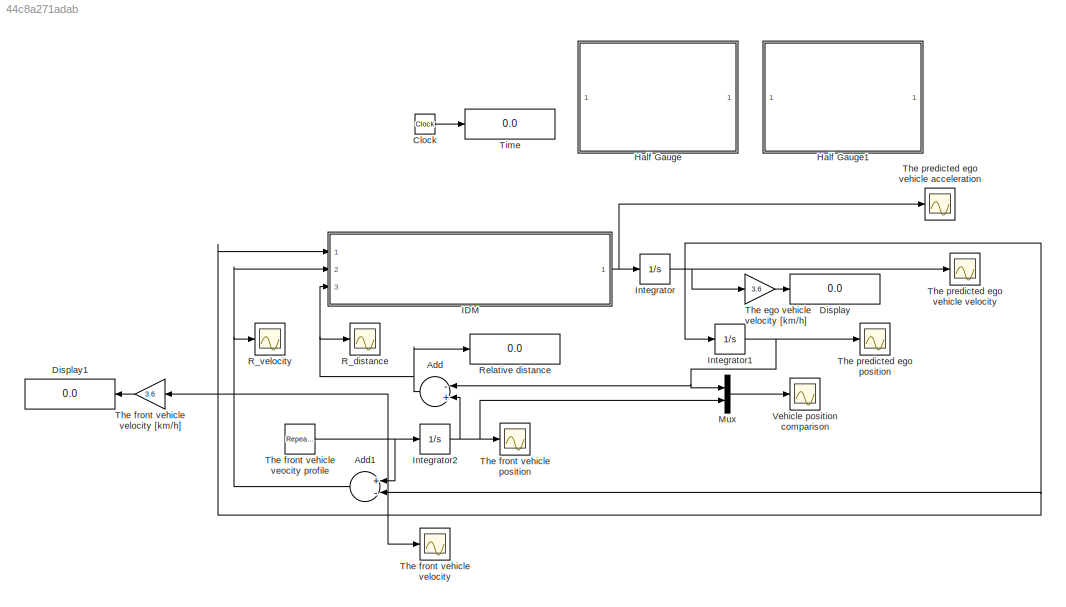
MODEL slx_44c8a271adab
KIND model
CONFIG AbsTol = auto
CONFIG EnableMultiTasking = off
CONFIG FixedStep = 0.01
CONFIG MaxStep = auto
CONFIG MinStep = auto
CONFIG RelTol = 1e-3
CONFIG SampleTimeConstraint = Unconstrained
CONFIG Solver = FixedStepAuto
CONFIG SolverName = FixedStepAuto
CONFIG StartTime = 0.0
CONFIG StopTime = 150
BLOCK [Sum] Add
  InputSameDT = off
  Inputs = -+
  OutDataTypeStr = Inherit: Inherit via internal rule
  Ports = [2, 1]
  SaturateOnIntegerOverflow = off
BLOCK [Sum] Add1
  InputSameDT = off
  Inputs = +-
  OutDataTypeStr = Inherit: Inherit via internal rule
  Ports = [2, 1]
  SaturateOnIntegerOverflow = off
BLOCK [Clock] Clock
BLOCK [Display] Display
  Decimation = 1
  Ports = [1]
BLOCK [Display] Display1
  Decimation = 1
  Ports = [1]
BLOCK [SubSystem] Half Gauge
  DialogController = hmiCreateDDGDialog
  IsWebBlock = on
  MaskHideContents = on
  Ports = []
  RequestExecContextInheritance = off
  Variant = off
BLOCK [SubSystem] Half Gauge1
  DialogController = hmiCreateDDGDialog
  IsWebBlock = on
  MaskHideContents = on
  Ports = []
  RequestExecContextInheritance = off
  Variant = off
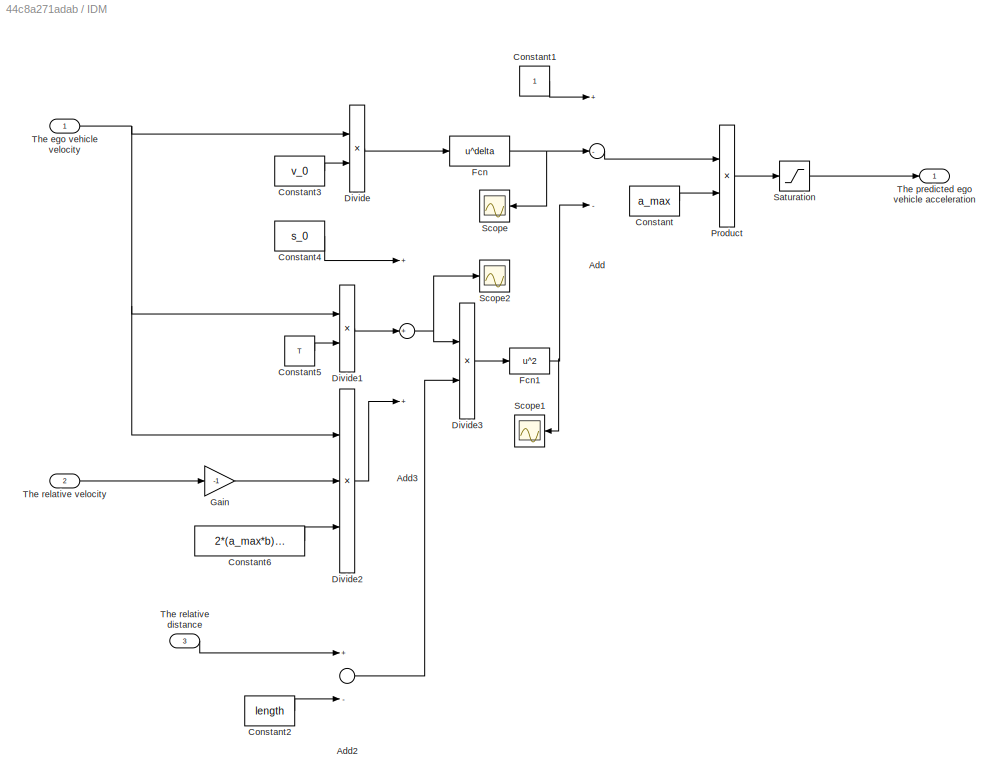
BLOCK [SubSystem] IDM
  Ports = [3, 1]
  RequestExecContextInheritance = off
  Variant = off
BLOCK [Sum] IDM/Add
  InputSameDT = off
  Inputs = +--
  OutDataTypeStr = Inherit: Inherit via internal rule
  Ports = [3, 1]
  SaturateOnIntegerOverflow = off
BLOCK [Sum] IDM/Add2
  InputSameDT = off
  Inputs = +-
  OutDataTypeStr = Inherit: Inherit via internal rule
  Ports = [2, 1]
  SaturateOnIntegerOverflow = off
BLOCK [Sum] IDM/Add3
  InputSameDT = off
  Inputs = +++
  OutDataTypeStr = Inherit: Inherit via internal rule
  Ports = [3, 1]
  SaturateOnIntegerOverflow = off
BLOCK [Constant] IDM/Constant
  Value = a_max
BLOCK [Constant] IDM/Constant1
BLOCK [Constant] IDM/Constant2
  Value = length
BLOCK [Constant] IDM/Constant3
  Value = v_0
BLOCK [Constant] IDM/Constant4
  Value = s_0
BLOCK [Constant] IDM/Constant5
  Value = T
BLOCK [Constant] IDM/Constant6
  Value = 2*(a_max*b)^0.5
BLOCK [Product] IDM/Divide
  InputSameDT = off
  Inputs = */
  OutDataTypeStr = Inherit: Inherit via internal rule
  Ports = [2, 1]
  RndMeth = Floor
  SaturateOnIntegerOverflow = off
BLOCK [Product] IDM/Divide1
  InputSameDT = off
  Inputs = **
  OutDataTypeStr = Inherit: Inherit via internal rule
  Ports = [2, 1]
  RndMeth = Floor
  SaturateOnIntegerOverflow = off
BLOCK [Product] IDM/Divide2
  InputSameDT = off
  Inputs = **/
  OutDataTypeStr = Inherit: Inherit via internal rule
  Ports = [3, 1]
  RndMeth = Floor
  SaturateOnIntegerOverflow = off
BLOCK [Product] IDM/Divide3
  InputSameDT = off
  Inputs = */
  OutDataTypeStr = Inherit: Inherit via internal rule
  Ports = [2, 1]
  RndMeth = Floor
  SaturateOnIntegerOverflow = off
BLOCK [Fcn] IDM/Fcn
  Expr = u^delta
BLOCK [Fcn] IDM/Fcn1
  Expr = u^2
BLOCK [Gain] IDM/Gain
  Gain = -1
  OutDataTypeStr = Inherit: Inherit via internal rule
  ParamDataTypeStr = Inherit: Inherit via internal rule
  SaturateOnIntegerOverflow = off
BLOCK [Product] IDM/Product
  InputSameDT = off
  OutDataTypeStr = Inherit: Inherit via internal rule
  Ports = [2, 1]
  RndMeth = Floor
  SaturateOnIntegerOverflow = off
BLOCK [Saturate] IDM/Saturation
  InputPortMap = u0
  LowerLimit = -19.6
  Ports = [1, 1]
  UpperLimit = 19.6
BLOCK [Scope] IDM/Scope
  NumInputPorts = 1
  Ports = [1]
  ScopeSpecificationString = Simulink.scopes.TimeScopeBlockCfg('CurrentConfiguration', extmgr.ConfigurationSet(extmgr.Configuration('Core','General UI',true),extmgr.Configuration('Core','Source UI',true),extmgr.Configuration('Sources','WiredSimulink',true,'DataLoggingVariableName','ScopeData2'),extmgr.Configuration('Visuals','Time Domain',true,'SerializedDisplays',{struct('MinYLimReal','4.0625','MaxYLimReal','6.0625','YLabelR...<+1352ch>
BLOCK [Scope] IDM/Scope1
  NumInputPorts = 1
  Ports = [1]
  ScopeSpecificationString = Simulink.scopes.TimeScopeBlockCfg('CurrentConfiguration', extmgr.ConfigurationSet(extmgr.Configuration('Core','General UI',true),extmgr.Configuration('Core','Source UI',true),extmgr.Configuration('Sources','WiredSimulink',true,'DataLoggingVariableName','ScopeData3'),extmgr.Configuration('Visuals','Time Domain',true,'SerializedDisplays',{struct('MinYLimReal','6.6436','MaxYLimReal','8.6436','YLabelR...<+1353ch>
BLOCK [Scope] IDM/Scope2
  NumInputPorts = 1
  Ports = [1]
  ScopeSpecificationString = Simulink.scopes.TimeScopeBlockCfg('CurrentConfiguration', extmgr.ConfigurationSet(extmgr.Configuration('Core','General UI',true),extmgr.Configuration('Core','Source UI',true),extmgr.Configuration('Sources','WiredSimulink',true,'DataLoggingVariableName','ScopeData4'),extmgr.Configuration('Visuals','Time Domain',true,'SerializedDisplays',{struct('MinYLimReal','37.00000','MaxYLimReal','57.00000','YLa...<+1369ch>
BLOCK [Inport] IDM/The ego vehicle velocity
  IconDisplay = Port number
BLOCK [Outport] IDM/The predicted ego vehicle acceleration
  IconDisplay = Port number
BLOCK [Inport] IDM/The relative distance
  IconDisplay = Port number
  Port = 3
BLOCK [Inport] IDM/The relative velocity
  IconDisplay = Port number
  Port = 2
BLOCK [Integrator] Integrator
  InitialCondition = 15
  Ports = [1, 1]
BLOCK [Integrator] Integrator1
  Ports = [1, 1]
BLOCK [Integrator] Integrator2
  InitialCondition = 50
  Ports = [1, 1]
BLOCK [Mux] Mux
  DisplayOption = bar
  Inputs = 2
  Ports = [2, 1]
BLOCK [Scope] R_distance
  NumInputPorts = 1
  Ports = [1]
  ScopeSpecificationString = Simulink.scopes.TimeScopeBlockCfg('CurrentConfiguration', extmgr.ConfigurationSet(extmgr.Configuration('Core','General UI',true),extmgr.Configuration('Core','Source UI',true),extmgr.Configuration('Sources','WiredSimulink',true,'DataLoggingVariableName','Relative_distance','DataLogging',true,'DataLoggingSaveFormat','Array'),extmgr.Configuration('Visuals','Time Domain',true,'SerializedDisplays',{str...<+1430ch>
BLOCK [Scope] R_velocity
  NumInputPorts = 1
  Ports = [1]
  ScopeSpecificationString = Simulink.scopes.TimeScopeBlockCfg('CurrentConfiguration', extmgr.ConfigurationSet(extmgr.Configuration('Core','General UI',true),extmgr.Configuration('Core','Source UI',true),extmgr.Configuration('Sources','WiredSimulink',true,'DataLoggingVariableName','Relative_velocity','DataLogging',true,'DataLoggingSaveFormat','Array'),extmgr.Configuration('Visuals','Time Domain',true,'SerializedDisplays',{str...<+1421ch>
BLOCK [Display] Relative distance
  Decimation = 1
  Ports = [1]
BLOCK [Gain] The ego vehicle velocity [km//h]
  Gain = 3.6
  OutDataTypeStr = Inherit: Inherit via internal rule
  ParamDataTypeStr = Inherit: Inherit via internal rule
  SaturateOnIntegerOverflow = off
BLOCK [Scope] The front vehicle position
  NumInputPorts = 1
  Ports = [1]
  ScopeSpecificationString = Simulink.scopes.TimeScopeBlockCfg('CurrentConfiguration', extmgr.ConfigurationSet(extmgr.Configuration('Core','General UI',true),extmgr.Configuration('Core','Source UI',true),extmgr.Configuration('Sources','WiredSimulink',true,'DataLoggingVariableName','Front_vehicle_position','DataLogging',true,'DataLoggingSaveFormat','Array'),extmgr.Configuration('Visuals','Time Domain',true,'SerializedDisplays'...<+1487ch>
BLOCK [Scope] The front vehicle velocity
  NumInputPorts = 1
  Ports = [1]
  ScopeSpecificationString = Simulink.scopes.TimeScopeBlockCfg('CurrentConfiguration', extmgr.ConfigurationSet(extmgr.Configuration('Core','General UI',true),extmgr.Configuration('Core','Source UI',true),extmgr.Configuration('Sources','WiredSimulink',true,'DataLoggingVariableName','Front_vehicle_velocity','DataLogging',true,'DataLoggingSaveFormat','Array'),extmgr.Configuration('Visuals','Time Domain',true,'SerializedDisplays'...<+1509ch>
BLOCK [Gain] The front vehicle velocity [km//h]
  Gain = 3.6
  OutDataTypeStr = Inherit: Inherit via internal rule
  ParamDataTypeStr = Inherit: Inherit via internal rule
  SaturateOnIntegerOverflow = off
BLOCK [Reference] The front vehicle veocity profile  REF=simulink/Sources/Repeating
Sequence
  Ports = [0, 1]
  SourceBlock = simulink/Sources/Repeating\nSequence
  SourceProductBaseCode = SL
  SourceProductName = Simulink
  SourceType = Repeating table
BLOCK [Scope] The predicted ego position
  NumInputPorts = 1
  Ports = [1]
  ScopeSpecificationString = Simulink.scopes.TimeScopeBlockCfg('CurrentConfiguration', extmgr.ConfigurationSet(extmgr.Configuration('Core','General UI',true),extmgr.Configuration('Core','Source UI',true),extmgr.Configuration('Sources','WiredSimulink',true,'DataLoggingVariableName','Ego_vehicle_position','DataLogging',true,'DataLoggingSaveFormat','Array'),extmgr.Configuration('Visuals','Time Domain',true,'SerializedDisplays',{...<+1449ch>
BLOCK [Scope] The predicted ego vehicle acceleration
  NumInputPorts = 1
  Ports = [1]
  ScopeSpecificationString = Simulink.scopes.TimeScopeBlockCfg('CurrentConfiguration', extmgr.ConfigurationSet(extmgr.Configuration('Core','General UI',true),extmgr.Configuration('Core','Source UI',true),extmgr.Configuration('Sources','WiredSimulink',true,'DataLoggingVariableName','Ego_vehicle_acceleration','DataLogging',true,'DataLoggingSaveFormat','Array'),extmgr.Configuration('Visuals','Time Domain',true,'SerializedDisplay...<+1427ch>
BLOCK [Scope] The predicted ego vehicle velocity
  NumInputPorts = 1
  Ports = [1]
  ScopeSpecificationString = Simulink.scopes.TimeScopeBlockCfg('CurrentConfiguration', extmgr.ConfigurationSet(extmgr.Configuration('Core','General UI',true),extmgr.Configuration('Core','Source UI',true),extmgr.Configuration('Sources','WiredSimulink',true,'DataLogging',true,'DataLoggingVariableName','Ego_vehicle_velocity','DataLoggingSaveFormat','Array'),extmgr.Configuration('Visuals','Time Domain',true,'SerializedDisplays',{...<+1436ch>
BLOCK [Display] Time
  Decimation = 1
  Ports = [1]
BLOCK [Scope] Vehicle position comparison
  NumInputPorts = 1
  Ports = [1]
  ScopeSpecificationString = Simulink.scopes.TimeScopeBlockCfg('CurrentConfiguration', extmgr.ConfigurationSet(extmgr.Configuration('Core','General UI',true),extmgr.Configuration('Core','Source UI',true),extmgr.Configuration('Sources','WiredSimulink',true,'DataLoggingVariableName','ScopeData2'),extmgr.Configuration('Visuals','Time Domain',true,'SerializedDisplays',{struct('MinYLimReal','-272.5257','MaxYLimReal','2452.73132','...<+1427ch>
NET Add1:1 -> IDM:2, R_velocity:1
NET Add:1 -> IDM:3, R_distance:1, Relative distance:1
LINE Clock:1 -> Time:1
LINE IDM/Add2:1 -> IDM/Divide3:2
NET IDM/Add3:1 -> IDM/Divide3:1, IDM/Scope2:1
LINE IDM/Add:1 -> IDM/Product:1
LINE IDM/Constant1:1 -> IDM/Add:1
LINE IDM/Constant2:1 -> IDM/Add2:2
LINE IDM/Constant3:1 -> IDM/Divide:2
LINE IDM/Constant4:1 -> IDM/Add3:1
LINE IDM/Constant5:1 -> IDM/Divide1:2
LINE IDM/Constant6:1 -> IDM/Divide2:3
LINE IDM/Constant:1 -> IDM/Product:2
LINE IDM/Divide1:1 -> IDM/Add3:2
LINE IDM/Divide2:1 -> IDM/Add3:3
LINE IDM/Divide3:1 -> IDM/Fcn1:1
LINE IDM/Divide:1 -> IDM/Fcn:1
NET IDM/Fcn1:1 -> IDM/Add:3, IDM/Scope1:1
NET IDM/Fcn:1 -> IDM/Add:2, IDM/Scope:1
LINE IDM/Gain:1 -> IDM/Divide2:2
LINE IDM/Product:1 -> IDM/Saturation:1
LINE IDM/Saturation:1 -> IDM/The predicted ego vehicle acceleration:1
NET IDM/The ego vehicle velocity:1 -> IDM/Divide1:1, IDM/Divide2:1, IDM/Divide:1
LINE IDM/The relative distance:1 -> IDM/Add2:1
LINE IDM/The relative velocity:1 -> IDM/Gain:1
NET IDM:1 -> Integrator:1, The predicted ego vehicle acceleration:1
NET Integrator1:1 -> Add:1, Mux:1, The predicted ego position:1
NET Integrator2:1 -> Add:2, Mux:2, The front vehicle position:1
NET Integrator:1 -> Add1:2, IDM:1, Integrator1:1, The ego vehicle velocity [km//h]:1, The predicted ego vehicle velocity:1
LINE Mux:1 -> Vehicle position comparison:1
LINE The ego vehicle velocity [km//h]:1 -> Display:1
LINE The front vehicle velocity [km//h]:1 -> Display1:1
NET The front vehicle veocity profile:1 -> Add1:1, Integrator2:1, The front vehicle velocity [km//h]:1, The front vehicle velocity:1
note: NET lines group one-source signal fan-out (src -> all destinations, sorted); 1:1 wires keep LINE
